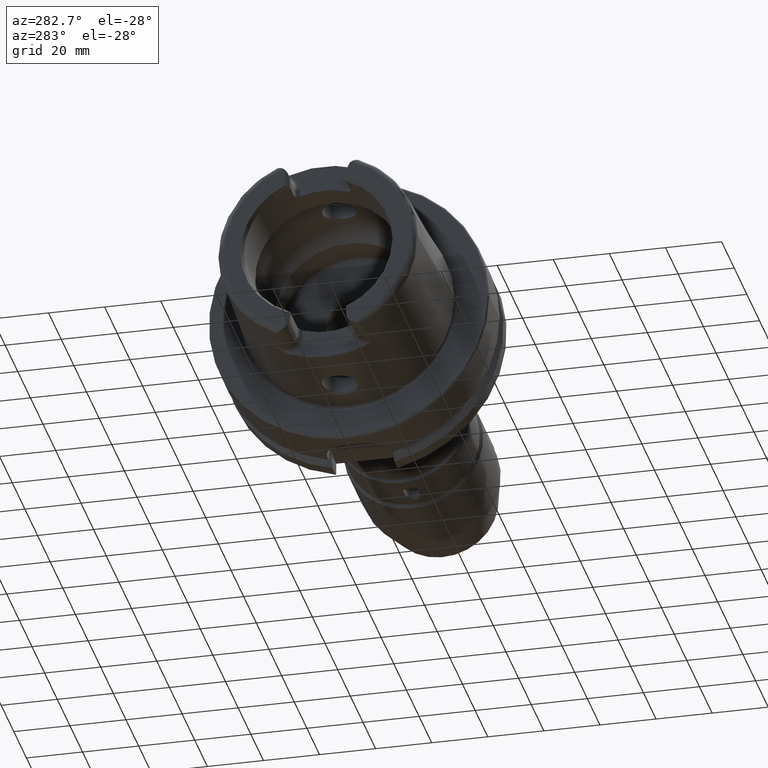
[diagram: clean part render]
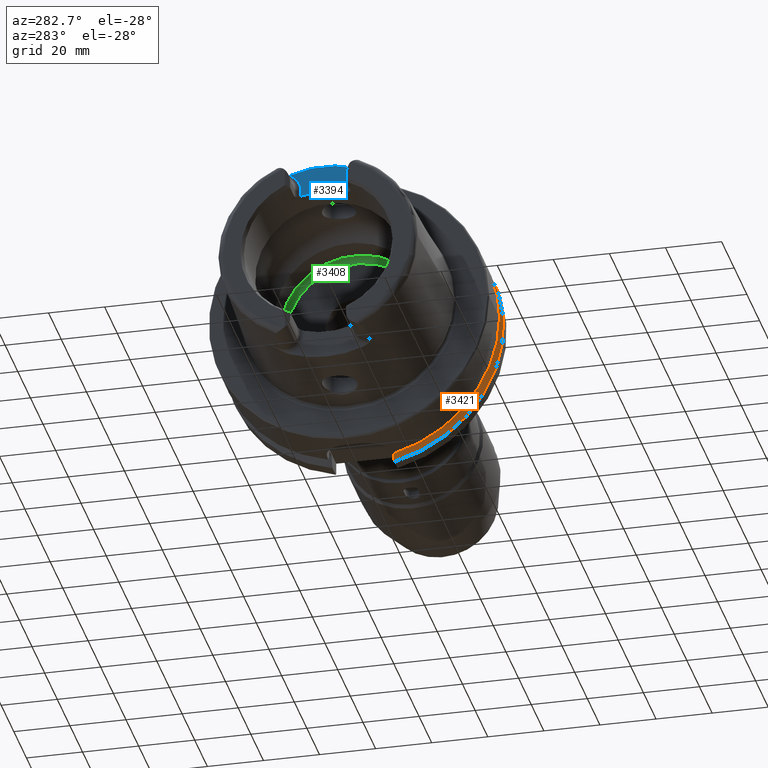
[diagram: same view with three faces highlighted in distinct colors, each labeled with its STEP entity id]
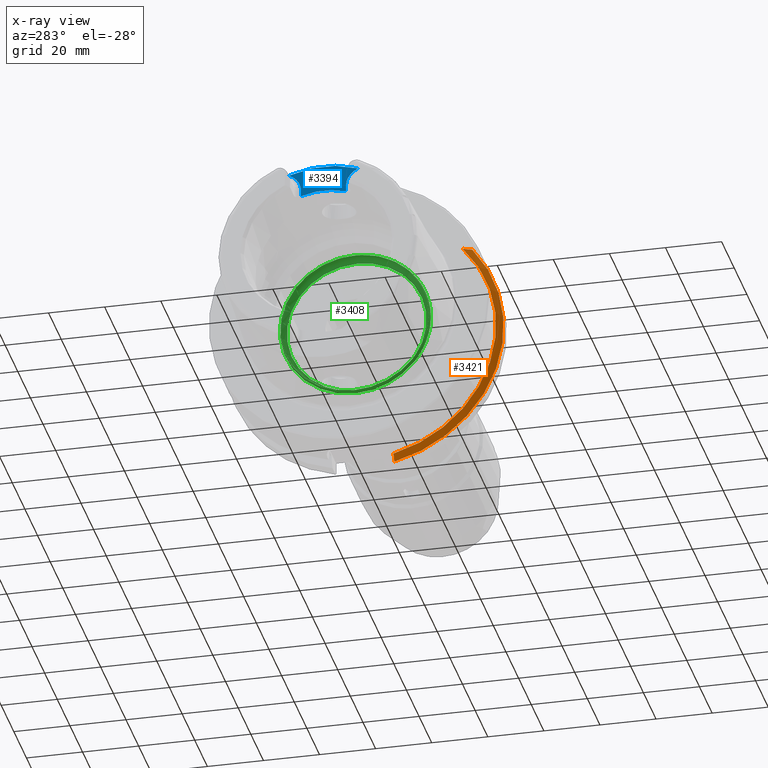
[diagram: x-ray of the same camera — body ghosted, the three highlighted faces saturated]
A machine part, auxiliary view with three faces highlighted in distinct colors.
The next image is the same camera in x-ray (body ghosted, the three faces saturated) — at least one of them is partly hidden behind the body in this view.
Their STEP definitions:

[orange] entity #3421 — the highlighted conical surface has half-angle 60 deg.
#75=(
BOUNDED_CURVE()
B_SPLINE_CURVE(2,(#6107,#6108,#6109),.UNSPECIFIED.,.F.,.F.)
B_SPLINE_CURVE_WITH_KNOTS((3,3),(0.,0.343884390880419),.UNSPECIFIED.)
CURVE()
GEOMETRIC_REPRESENTATION_ITEM()
RATIONAL_B_SPLINE_CURVE((1.,1.00052016257005,1.))
REPRESENTATION_ITEM('')
);
#80=(
BOUNDED_CURVE()
B_SPLINE_CURVE(2,(#6322,#6323,#6324),.UNSPECIFIED.,.F.,.F.)
B_SPLINE_CURVE_WITH_KNOTS((3,3),(0.,0.28292349080556),.UNSPECIFIED.)
CURVE()
GEOMETRIC_REPRESENTATION_ITEM()
RATIONAL_B_SPLINE_CURVE((1.,1.0003193410929,1.))
REPRESENTATION_ITEM('')
);
#179=CONICAL_SURFACE('',#3927,48.7987976320958,1.0471975511966);
#922=FACE_OUTER_BOUND('',#1140,.T.);
#1140=EDGE_LOOP('',(#2855,#2856,#2857,#2858));
#1312=CIRCLE('',#3821,50.);
#1364=CIRCLE('',#3926,47.5975952641917);
#1540=VERTEX_POINT('',#6104);
#1541=VERTEX_POINT('',#6106);
#1575=VERTEX_POINT('',#6319);
#1576=VERTEX_POINT('',#6321);
#1902=EDGE_CURVE('',#1541,#1540,#75,.T.);
#1952=EDGE_CURVE('',#1576,#1575,#80,.T.);
#1968=EDGE_CURVE('',#1541,#1575,#1312,.T.);
#2053=EDGE_CURVE('',#1540,#1576,#1364,.T.);
#2855=ORIENTED_EDGE('',*,*,#1902,.T.);
#2856=ORIENTED_EDGE('',*,*,#2053,.T.);
#2857=ORIENTED_EDGE('',*,*,#1952,.T.);
#2858=ORIENTED_EDGE('',*,*,#1968,.F.);
#3421=ADVANCED_FACE('',(#922),#179,.T.);
#3821=AXIS2_PLACEMENT_3D('',#6384,#4445,#4446);
#3926=AXIS2_PLACEMENT_3D('',#6628,#4679,#4680);
#3927=AXIS2_PLACEMENT_3D('',#6629,#4681,#4682);
#4445=DIRECTION('center_axis',(1.,0.,0.));
#4446=DIRECTION('ref_axis',(0.,0.,-1.));
#4679=DIRECTION('center_axis',(1.,0.,0.));
#4680=DIRECTION('ref_axis',(0.,0.,-1.));
#4681=DIRECTION('center_axis',(1.,0.,0.));
#4682=DIRECTION('ref_axis',(0.,-0.951449961441176,-0.307803461438603));
#6104=CARTESIAN_POINT('',(21.875,-35.6830642593065,31.5));
#6106=CARTESIAN_POINT('',(23.2620290209214,-38.8297566307078,31.5));
#6107=CARTESIAN_POINT('Ctrl Pts',(23.2620290209214,-38.8297566307078,31.5));
#6108=CARTESIAN_POINT('Ctrl Pts',(22.5392272442767,-37.2176818849707,31.5));
#6109=CARTESIAN_POINT('Ctrl Pts',(21.875,-35.6830642593065,31.5));
#6319=CARTESIAN_POINT('',(23.2620290209214,-11.,-48.7749935930288));
#6321=CARTESIAN_POINT('',(21.875,-11.,-46.3090819919138));
#6322=CARTESIAN_POINT('Ctrl Pts',(21.875,-11.,-46.3090819919138));
#6323=CARTESIAN_POINT('Ctrl Pts',(22.5505288964237,-11.,-47.5116880808802));
#6324=CARTESIAN_POINT('Ctrl Pts',(23.2620290209214,-11.,-48.7749935930288));
#6384=CARTESIAN_POINT('Origin',(23.2620290209214,0.,0.));
#6628=CARTESIAN_POINT('Origin',(21.875,0.,0.));
#6629=CARTESIAN_POINT('Origin',(22.5685145104607,0.,0.));

[blue] entity #3394 — the highlighted planar face has unit normal (-1, 0, 0).
#238=PLANE('',#3870);
#381=LINE('',#6448,#609);
#382=LINE('',#6477,#610);
#609=VECTOR('',#4494,10.);
#610=VECTOR('',#4507,10.);
#895=FACE_OUTER_BOUND('',#1109,.T.);
#1109=EDGE_LOOP('',(#2723,#2724,#2725,#2726,#2727,#2728));
#1278=CIRCLE('',#3757,36.003493987976);
#1321=CIRCLE('',#3843,6.88);
#1323=CIRCLE('',#3846,6.88);
#1335=CIRCLE('',#3871,26.5);
#1501=VERTEX_POINT('',#5626);
#1502=VERTEX_POINT('',#5643);
#1593=VERTEX_POINT('',#6445);
#1594=VERTEX_POINT('',#6447);
#1595=VERTEX_POINT('',#6462);
#1596=VERTEX_POINT('',#6466);
#1850=EDGE_CURVE('',#1501,#1502,#1278,.T.);
#1988=EDGE_CURVE('',#1593,#1594,#381,.T.);
#1990=EDGE_CURVE('',#1502,#1593,#1321,.T.);
#1992=EDGE_CURVE('',#1595,#1501,#1323,.T.);
#1994=EDGE_CURVE('',#1596,#1595,#382,.T.);
#2015=EDGE_CURVE('',#1594,#1596,#1335,.T.);
#2723=ORIENTED_EDGE('',*,*,#1990,.F.);
#2724=ORIENTED_EDGE('',*,*,#1850,.F.);
#2725=ORIENTED_EDGE('',*,*,#1992,.F.);
#2726=ORIENTED_EDGE('',*,*,#1994,.F.);
#2727=ORIENTED_EDGE('',*,*,#2015,.F.);
#2728=ORIENTED_EDGE('',*,*,#1988,.F.);
#3394=ADVANCED_FACE('',(#895),#238,.T.);
#3757=AXIS2_PLACEMENT_3D('',#5644,#4275,#4276);
#3843=AXIS2_PLACEMENT_3D('',#6460,#4497,#4498);
#3846=AXIS2_PLACEMENT_3D('',#6464,#4503,#4504);
#3870=AXIS2_PLACEMENT_3D('',#6535,#4559,#4560);
#3871=AXIS2_PLACEMENT_3D('',#6536,#4561,#4562);
#4275=DIRECTION('center_axis',(1.,0.,0.));
#4276=DIRECTION('ref_axis',(0.,1.,0.));
#4494=DIRECTION('',(0.,0.,-1.));
#4497=DIRECTION('center_axis',(-1.,0.,0.));
#4498=DIRECTION('ref_axis',(0.,0.564947834751706,0.82512662301574));
#4503=DIRECTION('center_axis',(-1.,0.,0.));
#4504=DIRECTION('ref_axis',(0.,-0.564947834751705,0.825126623015741));
#4507=DIRECTION('',(0.,0.,1.));
#4559=DIRECTION('center_axis',(-1.,0.,0.));
#4560=DIRECTION('ref_axis',(0.,0.,1.));
#4561=DIRECTION('center_axis',(-1.,0.,0.));
#4562=DIRECTION('ref_axis',(0.,1.,0.));
#5626=CARTESIAN_POINT('',(-40.,12.4227760464511,33.7923987701664));
#5643=CARTESIAN_POINT('',(-40.,-12.4227760464511,33.7923987701664));
#5644=CARTESIAN_POINT('Origin',(-40.,0.,0.));
#6445=CARTESIAN_POINT('',(-40.,-8.01,27.37));
#6447=CARTESIAN_POINT('',(-40.,-8.01,25.2604414054862));
#6448=CARTESIAN_POINT('',(-40.,-8.01,23.5));
#6460=CARTESIAN_POINT('Origin',(-40.,-14.89,27.37));
#6462=CARTESIAN_POINT('',(-40.,8.01,27.37));
#6464=CARTESIAN_POINT('Origin',(-40.,14.89,27.37));
#6466=CARTESIAN_POINT('',(-40.,8.01,25.2604414054862));
#6477=CARTESIAN_POINT('',(-40.,8.01,28.185));
#6535=CARTESIAN_POINT('Origin',(-40.,0.,29.));
#6536=CARTESIAN_POINT('Origin',(-40.,0.,0.));

[green] entity #3408 — the highlighted toroidal blend (fillet) surface has major radius 24.9 mm and minor (blend) radius 2 mm.
#909=FACE_OUTER_BOUND('',#1126,.T.);
#1126=EDGE_LOOP('',(#2796,#2797,#2798,#2799,#2800));
#1348=CIRCLE('',#3897,24.9);
#1349=CIRCLE('',#3899,2.);
#1350=CIRCLE('',#3900,26.5);
#1351=CIRCLE('',#3901,26.5);
#1613=VERTEX_POINT('',#6586);
#1614=VERTEX_POINT('',#6589);
#1615=VERTEX_POINT('',#6591);
#2033=EDGE_CURVE('',#1613,#1613,#1348,.T.);
#2034=EDGE_CURVE('',#1613,#1614,#1349,.T.);
#2035=EDGE_CURVE('',#1614,#1615,#1350,.T.);
#2036=EDGE_CURVE('',#1615,#1614,#1351,.T.);
#2796=ORIENTED_EDGE('',*,*,#2033,.F.);
#2797=ORIENTED_EDGE('',*,*,#2034,.T.);
#2798=ORIENTED_EDGE('',*,*,#2035,.T.);
#2799=ORIENTED_EDGE('',*,*,#2036,.T.);
#2800=ORIENTED_EDGE('',*,*,#2034,.F.);
#3298=TOROIDAL_SURFACE('',#3898,24.9,2.);
#3408=ADVANCED_FACE('',(#909),#3298,.F.);
#3897=AXIS2_PLACEMENT_3D('',#6587,#4617,#4618);
#3898=AXIS2_PLACEMENT_3D('',#6588,#4619,#4620);
#3899=AXIS2_PLACEMENT_3D('',#6590,#4621,#4622);
#3900=AXIS2_PLACEMENT_3D('',#6592,#4623,#4624);
#3901=AXIS2_PLACEMENT_3D('',#6593,#4625,#4626);
#4617=DIRECTION('center_axis',(-1.,0.,0.));
#4618=DIRECTION('ref_axis',(0.,0.,1.));
#4619=DIRECTION('center_axis',(-1.,0.,0.));
#4620=DIRECTION('ref_axis',(0.,0.,1.));
#4621=DIRECTION('center_axis',(0.,1.,-1.22464679914735E-16));
#4622=DIRECTION('ref_axis',(0.,-1.22464679914735E-16,-1.));
#4623=DIRECTION('center_axis',(-1.,0.,0.));
#4624=DIRECTION('ref_axis',(0.,0.,1.));
#4625=DIRECTION('center_axis',(-1.,0.,0.));
#4626=DIRECTION('ref_axis',(0.,0.,1.));
#6586=CARTESIAN_POINT('',(12.5,-3.04937052987691E-15,-24.9));
#6587=CARTESIAN_POINT('Origin',(12.5,0.,0.));
#6588=CARTESIAN_POINT('Origin',(10.5,0.,0.));
#6589=CARTESIAN_POINT('',(9.3,-3.24531401774049E-15,-26.5));
#6590=CARTESIAN_POINT('Origin',(10.5,-3.04937052987691E-15,-24.9));
#6591=CARTESIAN_POINT('',(9.3,-26.5,3.24531401774049E-15));
#6592=CARTESIAN_POINT('Origin',(9.3,0.,0.));
#6593=CARTESIAN_POINT('Origin',(9.3,0.,0.));